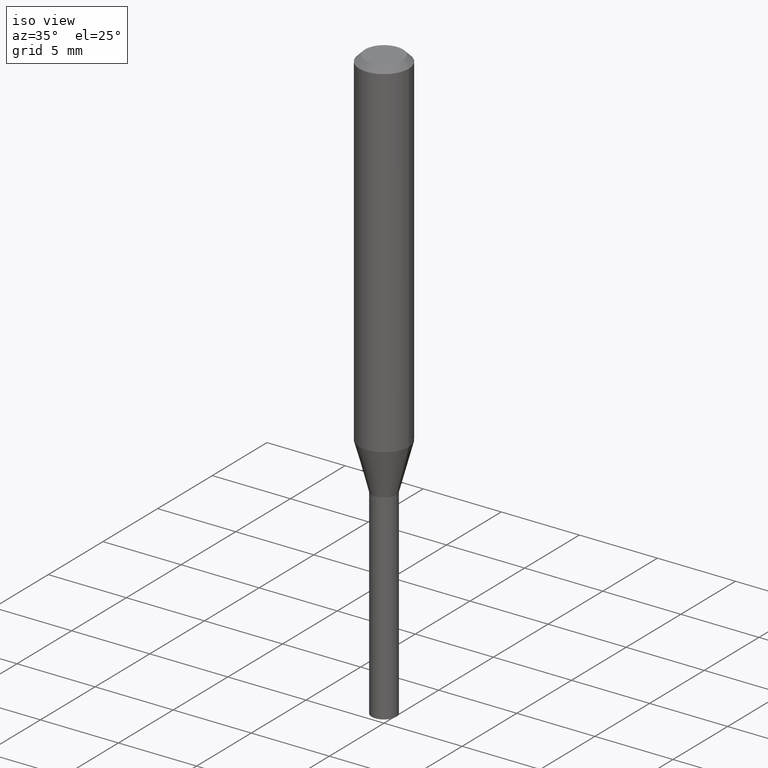
[diagram: clean part render]
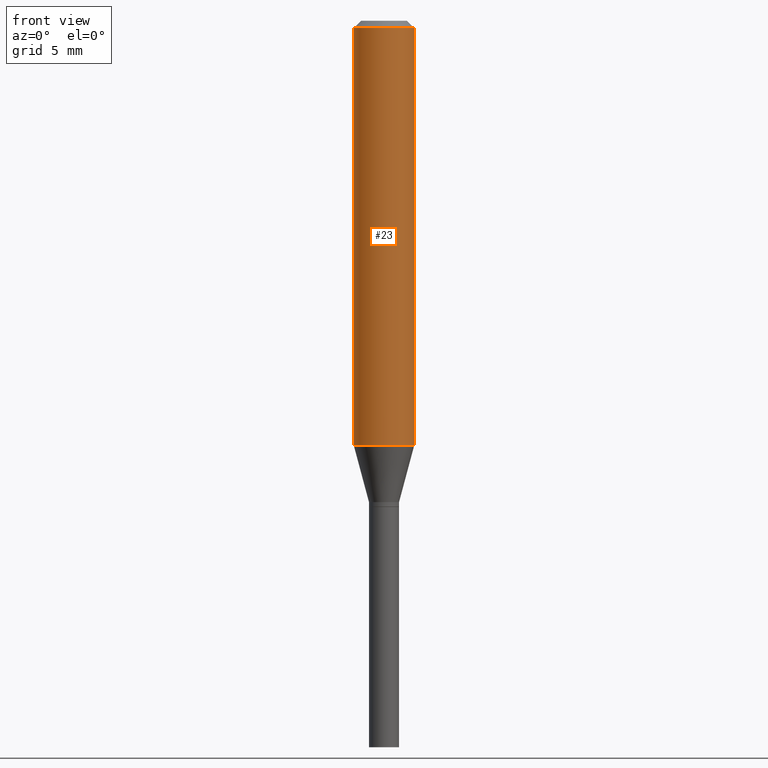
[diagram: tour spotlight — one face highlighted and labeled with its STEP entity id]
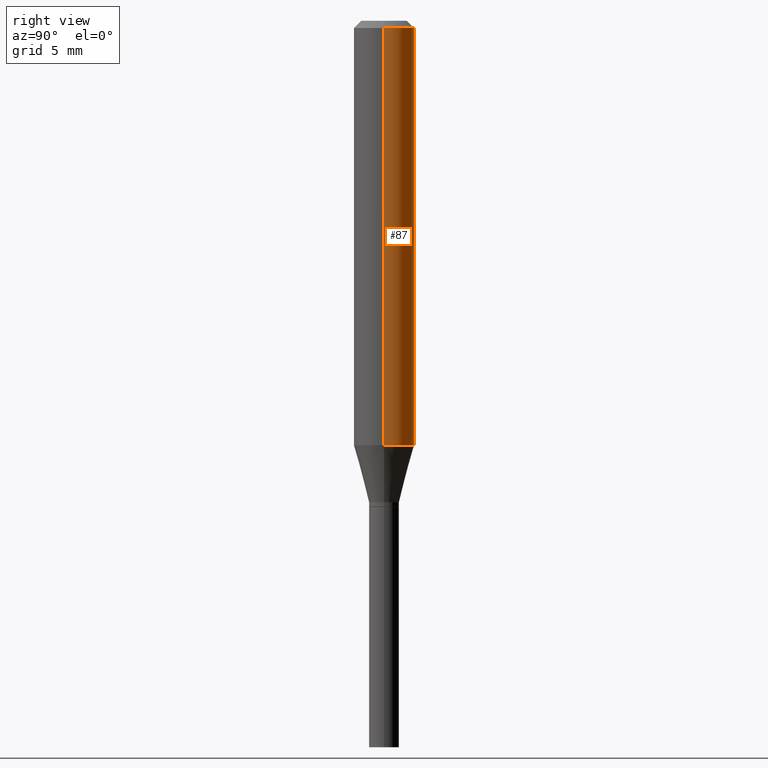
[diagram: tour spotlight — one face highlighted and labeled with its STEP entity id]
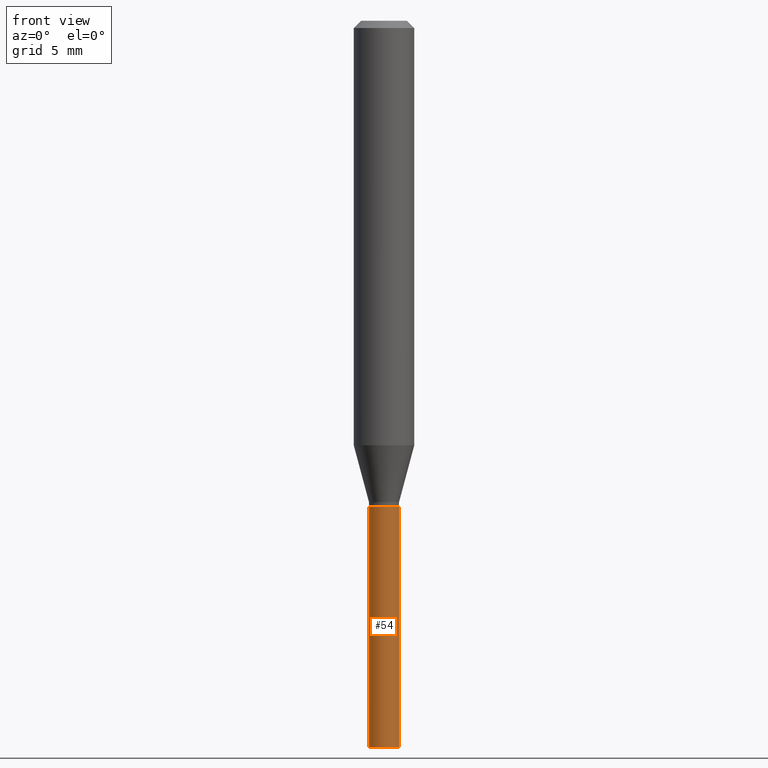
[diagram: tour spotlight — one face highlighted and labeled with its STEP entity id]
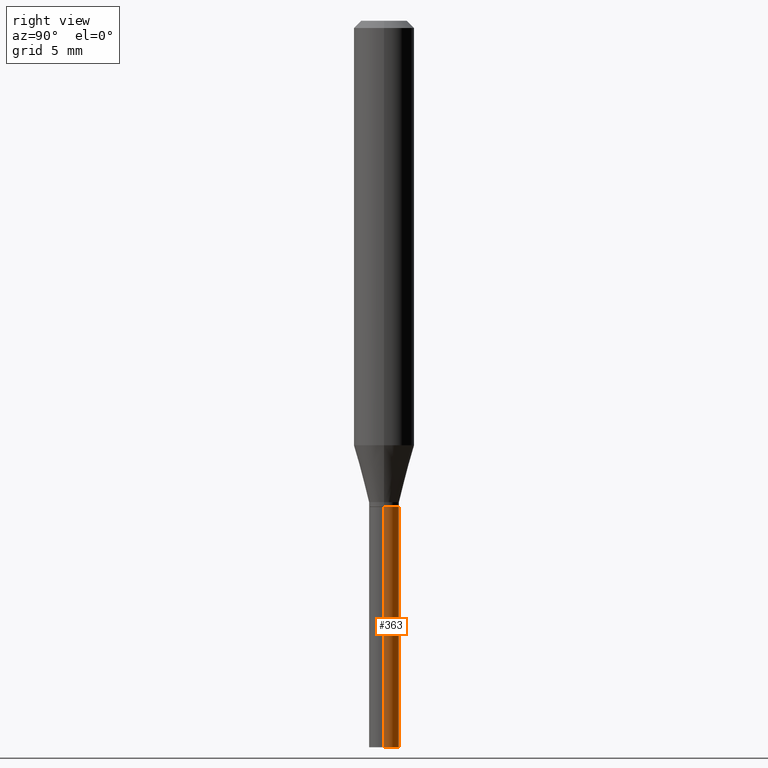
[diagram: tour spotlight — one face highlighted and labeled with its STEP entity id]
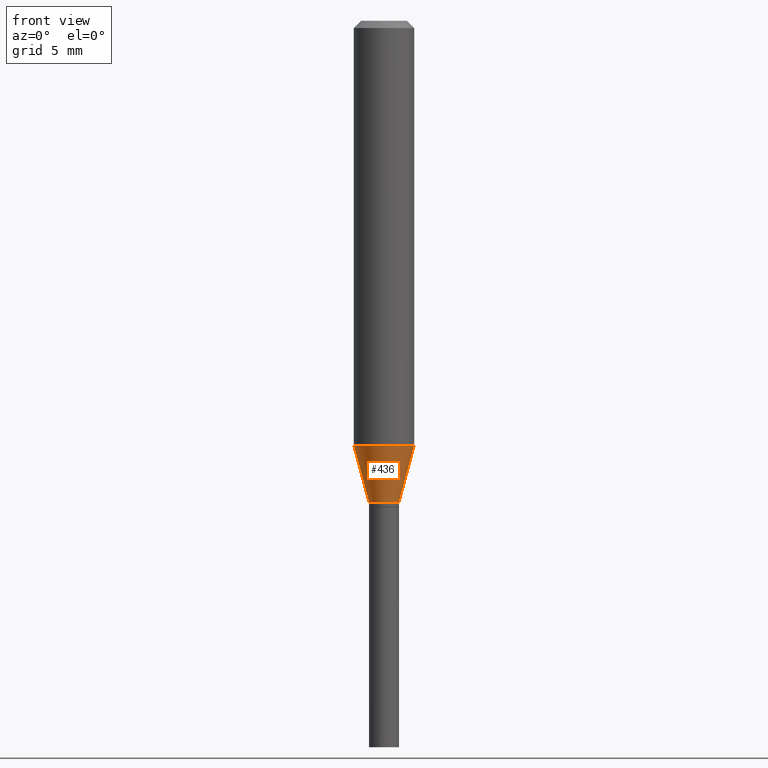
[diagram: tour spotlight — one face highlighted and labeled with its STEP entity id]
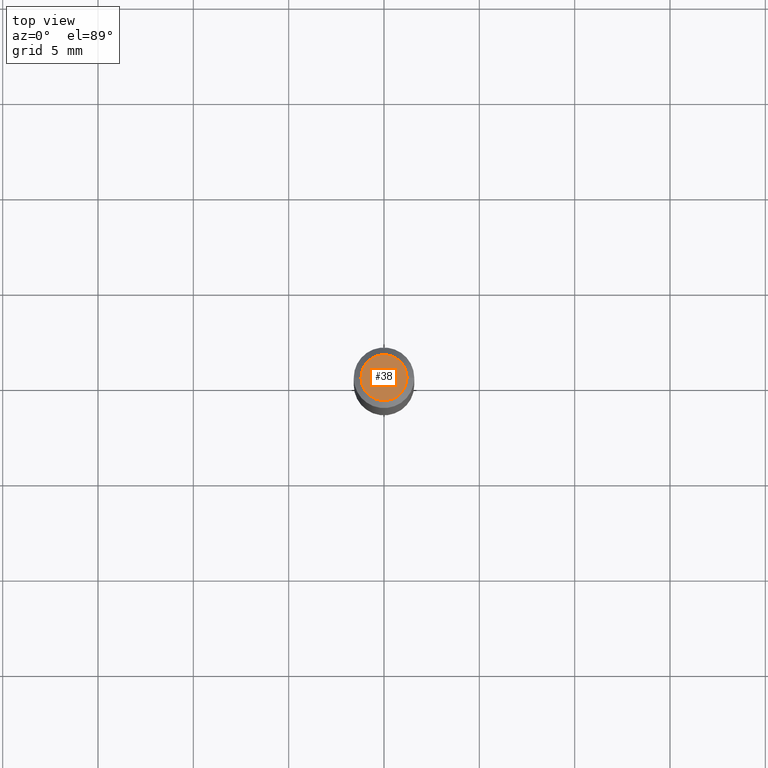
[diagram: tour spotlight — one face highlighted and labeled with its STEP entity id]
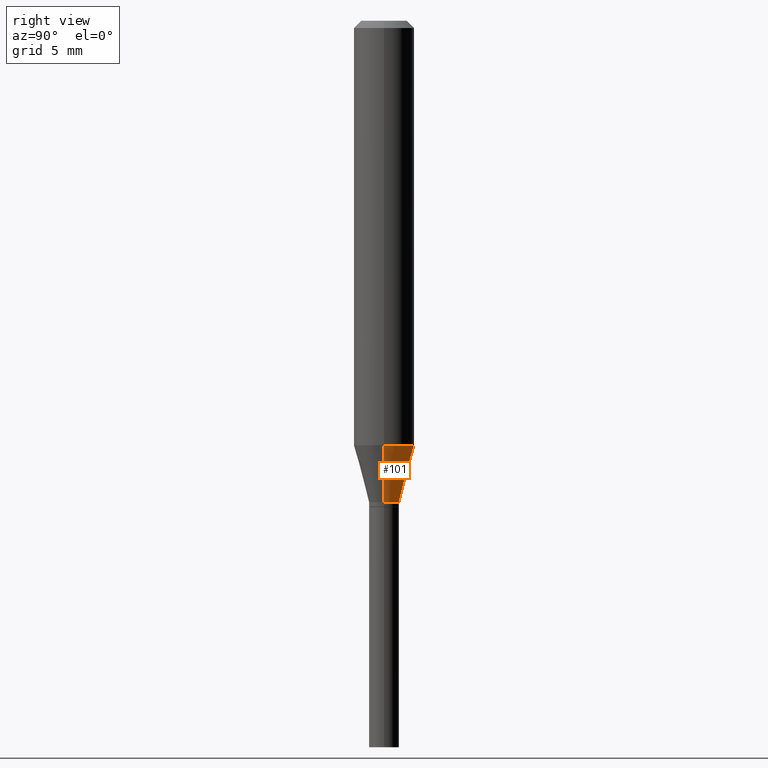
[diagram: tour spotlight — one face highlighted and labeled with its STEP entity id]
A machine part: a face-by-face anatomy tour. The part has 16 B-rep faces; the first image is the clean iso view, then the 7 largest visible faces are spotlighted one at a time (largest first), each with its STEP entity span.

Face 1 — front view, entity #23. In plain terms, the highlighted cylindrical surface (edge-blend (fillet) strip) has radius 1.5875 mm, axis along (-0, 0, 1).
Definition (entity closure, byte-faithful):
#18 = ORIENTED_EDGE ( 'NONE', *, *, #283, .F. ) ;
#22 = DIRECTION ( 'NONE',  ( 1.000000000000000000, -6.982962677686266711E-15, 4.876176775795935793E-29 ) ) ;
#23 = ADVANCED_FACE ( 'NONE', ( #127 ), #232, .T. ) ;
#32 = ORIENTED_EDGE ( 'NONE', *, *, #265, .T. ) ;
#56 = CARTESIAN_POINT ( 'NONE',  ( 0.000000000000000000, 0.000000000000000000, 0.000000000000000000 ) ) ;
#60 = VECTOR ( 'NONE', #349, 39.37007874015748143 ) ;
#64 = CARTESIAN_POINT ( 'NONE',  ( -0.06250000000000000000, 4.440892098500626162E-16, -3.074334431409316114E-30 ) ) ;
#79 = DIRECTION ( 'NONE',  ( -2.445468806185136877E-29, 3.491481338843145188E-15, 1.000000000000000000 ) ) ;
#81 = AXIS2_PLACEMENT_3D ( 'NONE', #173, #207, #383 ) ;
#89 = VERTEX_POINT ( 'NONE', #124 ) ;
#91 = EDGE_CURVE ( 'NONE', #261, #89, #288, .T. ) ;
#105 = LINE ( 'NONE', #64, #60 ) ;
#115 = AXIS2_PLACEMENT_3D ( 'NONE', #56, #267, #22 ) ;
#124 = CARTESIAN_POINT ( 'NONE',  ( 0.06250000000000000000, -4.888073874380388472E-16, -0.01499999999999999944 ) ) ;
#127 = FACE_OUTER_BOUND ( 'NONE', #291, .T. ) ;
#136 = CARTESIAN_POINT ( 'NONE',  ( -0.06250000000000000000, -2.615986089827427653E-15, -0.8764403995615810405 ) ) ;
#164 = VERTEX_POINT ( 'NONE', #136 ) ;
#173 = CARTESIAN_POINT ( 'NONE',  ( 2.143307657608283441E-29, -3.060075299677490269E-15, -0.8764403995615810405 ) ) ;
#192 = CARTESIAN_POINT ( 'NONE',  ( 3.668203209277705088E-31, -5.237222008264718399E-17, -0.01499999999999999944 ) ) ;
#207 = DIRECTION ( 'NONE',  ( -2.445468806185136597E-29, 3.491481338843145583E-15, 1.000000000000000000 ) ) ;
#218 = ORIENTED_EDGE ( 'NONE', *, *, #371, .T. ) ;
#232 = CYLINDRICAL_SURFACE ( 'NONE', #115, 0.06250000000000000000 ) ;
#241 = CARTESIAN_POINT ( 'NONE',  ( -0.06250000000000000000, -1.112134550030006255E-15, -0.01499999999999999944 ) ) ;
#252 = ORIENTED_EDGE ( 'NONE', *, *, #91, .F. ) ;
#261 = VERTEX_POINT ( 'NONE', #241 ) ;
#265 = EDGE_CURVE ( 'NONE', #164, #403, #425, .T. ) ;
#267 = DIRECTION ( 'NONE',  ( -2.445468806185136597E-29, 3.491481338843145583E-15, 1.000000000000000000 ) ) ;
#270 = VECTOR ( 'NONE', #79, 39.37007874015748143 ) ;
#283 = EDGE_CURVE ( 'NONE', #164, #261, #105, .T. ) ;
#288 = CIRCLE ( 'NONE', #465, 0.06250000000000000000 ) ;
#291 = EDGE_LOOP ( 'NONE', ( #18, #32, #218, #252 ) ) ;
#303 = DIRECTION ( 'NONE',  ( -2.445468806185136597E-29, 3.491481338843145583E-15, 1.000000000000000000 ) ) ;
#304 = DIRECTION ( 'NONE',  ( 1.000000000000000000, -6.982962677686266711E-15, 0.000000000000000000 ) ) ;
#349 = DIRECTION ( 'NONE',  ( -2.445468806185136877E-29, 3.491481338843145188E-15, 1.000000000000000000 ) ) ;
#362 = CARTESIAN_POINT ( 'NONE',  ( 0.06250000000000000000, -3.496510467032882333E-15, -0.8764403995615810405 ) ) ;
#371 = EDGE_CURVE ( 'NONE', #403, #89, #397, .T. ) ;
#383 = DIRECTION ( 'NONE',  ( 1.000000000000000000, -6.982962677686270655E-15, 0.000000000000000000 ) ) ;
#393 = CARTESIAN_POINT ( 'NONE',  ( 0.06250000000000000000, -4.364351673553916694E-16, 3.047610484872459871E-30 ) ) ;
#397 = LINE ( 'NONE', #393, #270 ) ;
#403 = VERTEX_POINT ( 'NONE', #362 ) ;
#425 = CIRCLE ( 'NONE', #81, 0.06250000000000000000 ) ;
#465 = AXIS2_PLACEMENT_3D ( 'NONE', #192, #303, #304 ) ;

Face 2 — right view, entity #87. In plain terms, the highlighted cylindrical surface (edge-blend (fillet) strip) has radius 1.5875 mm, axis along (-0, 0, 1).
Definition (entity closure, byte-faithful):
#9 = EDGE_CURVE ( 'NONE', #403, #164, #286, .T. ) ;
#52 = CYLINDRICAL_SURFACE ( 'NONE', #416, 0.06250000000000000000 ) ;
#57 = ORIENTED_EDGE ( 'NONE', *, *, #154, .F. ) ;
#58 = ORIENTED_EDGE ( 'NONE', *, *, #283, .T. ) ;
#60 = VECTOR ( 'NONE', #349, 39.37007874015748143 ) ;
#64 = CARTESIAN_POINT ( 'NONE',  ( -0.06250000000000000000, 4.440892098500626162E-16, -3.074334431409316114E-30 ) ) ;
#79 = DIRECTION ( 'NONE',  ( -2.445468806185136877E-29, 3.491481338843145188E-15, 1.000000000000000000 ) ) ;
#87 = ADVANCED_FACE ( 'NONE', ( #409 ), #52, .T. ) ;
#89 = VERTEX_POINT ( 'NONE', #124 ) ;
#92 = DIRECTION ( 'NONE',  ( 1.000000000000000000, -6.982962677686270655E-15, 0.000000000000000000 ) ) ;
#105 = LINE ( 'NONE', #64, #60 ) ;
#124 = CARTESIAN_POINT ( 'NONE',  ( 0.06250000000000000000, -4.888073874380388472E-16, -0.01499999999999999944 ) ) ;
#131 = DIRECTION ( 'NONE',  ( -2.445468806185136597E-29, 3.491481338843145583E-15, 1.000000000000000000 ) ) ;
#136 = CARTESIAN_POINT ( 'NONE',  ( -0.06250000000000000000, -2.615986089827427653E-15, -0.8764403995615810405 ) ) ;
#154 = EDGE_CURVE ( 'NONE', #89, #261, #297, .T. ) ;
#164 = VERTEX_POINT ( 'NONE', #136 ) ;
#170 = DIRECTION ( 'NONE',  ( 1.000000000000000000, -6.982962677686266711E-15, 0.000000000000000000 ) ) ;
#185 = ORIENTED_EDGE ( 'NONE', *, *, #9, .T. ) ;
#234 = CARTESIAN_POINT ( 'NONE',  ( 3.668203209277705088E-31, -5.237222008264718399E-17, -0.01499999999999999944 ) ) ;
#241 = CARTESIAN_POINT ( 'NONE',  ( -0.06250000000000000000, -1.112134550030006255E-15, -0.01499999999999999944 ) ) ;
#261 = VERTEX_POINT ( 'NONE', #241 ) ;
#269 = CARTESIAN_POINT ( 'NONE',  ( 2.143307657608283441E-29, -3.060075299677490269E-15, -0.8764403995615810405 ) ) ;
#270 = VECTOR ( 'NONE', #79, 39.37007874015748143 ) ;
#283 = EDGE_CURVE ( 'NONE', #164, #261, #105, .T. ) ;
#286 = CIRCLE ( 'NONE', #342, 0.06250000000000000000 ) ;
#293 = ORIENTED_EDGE ( 'NONE', *, *, #371, .F. ) ;
#297 = CIRCLE ( 'NONE', #302, 0.06250000000000000000 ) ;
#301 = DIRECTION ( 'NONE',  ( -2.445468806185136597E-29, 3.491481338843145583E-15, 1.000000000000000000 ) ) ;
#302 = AXIS2_PLACEMENT_3D ( 'NONE', #234, #426, #170 ) ;
#334 = CARTESIAN_POINT ( 'NONE',  ( 0.000000000000000000, 0.000000000000000000, 0.000000000000000000 ) ) ;
#342 = AXIS2_PLACEMENT_3D ( 'NONE', #269, #301, #92 ) ;
#349 = DIRECTION ( 'NONE',  ( -2.445468806185136877E-29, 3.491481338843145188E-15, 1.000000000000000000 ) ) ;
#362 = CARTESIAN_POINT ( 'NONE',  ( 0.06250000000000000000, -3.496510467032882333E-15, -0.8764403995615810405 ) ) ;
#371 = EDGE_CURVE ( 'NONE', #403, #89, #397, .T. ) ;
#393 = CARTESIAN_POINT ( 'NONE',  ( 0.06250000000000000000, -4.364351673553916694E-16, 3.047610484872459871E-30 ) ) ;
#394 = EDGE_LOOP ( 'NONE', ( #185, #58, #57, #293 ) ) ;
#397 = LINE ( 'NONE', #393, #270 ) ;
#403 = VERTEX_POINT ( 'NONE', #362 ) ;
#409 = FACE_OUTER_BOUND ( 'NONE', #394, .T. ) ;
#416 = AXIS2_PLACEMENT_3D ( 'NONE', #334, #131, #450 ) ;
#426 = DIRECTION ( 'NONE',  ( -2.445468806185136597E-29, 3.491481338843145583E-15, 1.000000000000000000 ) ) ;
#450 = DIRECTION ( 'NONE',  ( 1.000000000000000000, -6.982962677686266711E-15, 4.876176775795935793E-29 ) ) ;

Face 3 — front view, entity #54. In plain terms, the highlighted cylindrical surface (edge-blend (fillet) strip) has radius 0.7874 mm, axis along (-0, 0, 1).
Definition (entity closure, byte-faithful):
#3 = CARTESIAN_POINT ( 'NONE',  ( -0.03099999999999999978, 2.202682480856310560E-16, -1.524869877979020612E-30 ) ) ;
#6 = ORIENTED_EDGE ( 'NONE', *, *, #307, .F. ) ;
#15 = EDGE_CURVE ( 'NONE', #74, #332, #230, .T. ) ;
#39 = DIRECTION ( 'NONE',  ( -2.445468806185136877E-29, 3.491481338843145188E-15, 1.000000000000000000 ) ) ;
#40 = DIRECTION ( 'NONE',  ( -2.445468806185136597E-29, 3.491481338843145583E-15, 1.000000000000000000 ) ) ;
#50 = ORIENTED_EDGE ( 'NONE', *, *, #254, .T. ) ;
#54 = ADVANCED_FACE ( 'NONE', ( #263 ), #372, .T. ) ;
#66 = LINE ( 'NONE', #284, #380 ) ;
#67 = LINE ( 'NONE', #3, #97 ) ;
#69 = VERTEX_POINT ( 'NONE', #370 ) ;
#74 = VERTEX_POINT ( 'NONE', #83 ) ;
#83 = CARTESIAN_POINT ( 'NONE',  ( -0.03099999999999999978, -4.151066388145987232E-15, -1.004000000000000226 ) ) ;
#97 = VECTOR ( 'NONE', #39, 39.37007874015748143 ) ;
#129 = ORIENTED_EDGE ( 'NONE', *, *, #15, .F. ) ;
#162 = DIRECTION ( 'NONE',  ( -2.445468806185136597E-29, 3.491481338843145583E-15, 1.000000000000000000 ) ) ;
#163 = DIRECTION ( 'NONE',  ( -2.445468806185136597E-29, 3.491481338843145583E-15, 1.000000000000000000 ) ) ;
#165 = CIRCLE ( 'NONE', #306, 0.03099999999999999978 ) ;
#174 = AXIS2_PLACEMENT_3D ( 'NONE', #233, #163, #193 ) ;
#193 = DIRECTION ( 'NONE',  ( 1.000000000000000000, -6.982962677686266711E-15, 4.876176775795935232E-29 ) ) ;
#196 = CARTESIAN_POINT ( 'NONE',  ( 2.455250681409877327E-29, -3.505447264198518794E-15, -1.004000000000000226 ) ) ;
#220 = CARTESIAN_POINT ( 'NONE',  ( 3.668203209277704895E-29, -5.237222008264718177E-15, -1.500000000000000222 ) ) ;
#223 = ORIENTED_EDGE ( 'NONE', *, *, #365, .T. ) ;
#230 = CIRCLE ( 'NONE', #452, 0.03099999999999999978 ) ;
#233 = CARTESIAN_POINT ( 'NONE',  ( 0.000000000000000000, 0.000000000000000000, 0.000000000000000000 ) ) ;
#249 = DIRECTION ( 'NONE',  ( 1.000000000000000000, -6.982962677686270655E-15, 0.000000000000000000 ) ) ;
#254 = EDGE_CURVE ( 'NONE', #69, #332, #66, .T. ) ;
#263 = FACE_OUTER_BOUND ( 'NONE', #419, .T. ) ;
#284 = CARTESIAN_POINT ( 'NONE',  ( 0.03099999999999999978, -2.164718430082742572E-16, 1.511614800496739984E-30 ) ) ;
#294 = CARTESIAN_POINT ( 'NONE',  ( 0.03099999999999999978, -3.721919107206793126E-15, -1.004000000000000226 ) ) ;
#300 = DIRECTION ( 'NONE',  ( 1.000000000000000000, -6.982962677686270655E-15, 0.000000000000000000 ) ) ;
#306 = AXIS2_PLACEMENT_3D ( 'NONE', #220, #40, #249 ) ;
#307 = EDGE_CURVE ( 'NONE', #456, #74, #67, .T. ) ;
#332 = VERTEX_POINT ( 'NONE', #294 ) ;
#348 = DIRECTION ( 'NONE',  ( -2.445468806185136877E-29, 3.491481338843145188E-15, 1.000000000000000000 ) ) ;
#365 = EDGE_CURVE ( 'NONE', #456, #69, #165, .T. ) ;
#370 = CARTESIAN_POINT ( 'NONE',  ( 0.03099999999999999978, -5.453693851272993297E-15, -1.500000000000000222 ) ) ;
#372 = CYLINDRICAL_SURFACE ( 'NONE', #174, 0.03099999999999999978 ) ;
#380 = VECTOR ( 'NONE', #348, 39.37007874015748143 ) ;
#405 = CARTESIAN_POINT ( 'NONE',  ( -0.03099999999999999978, -4.151066388145987232E-15, -1.500000000000000222 ) ) ;
#419 = EDGE_LOOP ( 'NONE', ( #6, #223, #50, #129 ) ) ;
#452 = AXIS2_PLACEMENT_3D ( 'NONE', #196, #162, #300 ) ;
#456 = VERTEX_POINT ( 'NONE', #405 ) ;

Face 4 — right view, entity #363. In plain terms, the highlighted cylindrical surface (edge-blend (fillet) strip) has radius 0.7874 mm, axis along (-0, 0, 1).
Definition (entity closure, byte-faithful):
#3 = CARTESIAN_POINT ( 'NONE',  ( -0.03099999999999999978, 2.202682480856310560E-16, -1.524869877979020612E-30 ) ) ;
#21 = ORIENTED_EDGE ( 'NONE', *, *, #104, .T. ) ;
#34 = DIRECTION ( 'NONE',  ( 1.000000000000000000, -6.982962677686270655E-15, 0.000000000000000000 ) ) ;
#39 = DIRECTION ( 'NONE',  ( -2.445468806185136877E-29, 3.491481338843145188E-15, 1.000000000000000000 ) ) ;
#42 = CIRCLE ( 'NONE', #433, 0.03099999999999999978 ) ;
#44 = ORIENTED_EDGE ( 'NONE', *, *, #254, .F. ) ;
#66 = LINE ( 'NONE', #284, #380 ) ;
#67 = LINE ( 'NONE', #3, #97 ) ;
#69 = VERTEX_POINT ( 'NONE', #370 ) ;
#74 = VERTEX_POINT ( 'NONE', #83 ) ;
#83 = CARTESIAN_POINT ( 'NONE',  ( -0.03099999999999999978, -4.151066388145987232E-15, -1.004000000000000226 ) ) ;
#97 = VECTOR ( 'NONE', #39, 39.37007874015748143 ) ;
#104 = EDGE_CURVE ( 'NONE', #69, #456, #42, .T. ) ;
#108 = CARTESIAN_POINT ( 'NONE',  ( 0.000000000000000000, 0.000000000000000000, 0.000000000000000000 ) ) ;
#118 = DIRECTION ( 'NONE',  ( -2.445468806185136597E-29, 3.491481338843145583E-15, 1.000000000000000000 ) ) ;
#147 = FACE_OUTER_BOUND ( 'NONE', #158, .T. ) ;
#158 = EDGE_LOOP ( 'NONE', ( #21, #438, #187, #44 ) ) ;
#178 = CYLINDRICAL_SURFACE ( 'NONE', #343, 0.03099999999999999978 ) ;
#187 = ORIENTED_EDGE ( 'NONE', *, *, #194, .F. ) ;
#194 = EDGE_CURVE ( 'NONE', #332, #74, #453, .T. ) ;
#201 = CARTESIAN_POINT ( 'NONE',  ( 3.668203209277704895E-29, -5.237222008264718177E-15, -1.500000000000000222 ) ) ;
#208 = DIRECTION ( 'NONE',  ( -2.445468806185136597E-29, 3.491481338843145583E-15, 1.000000000000000000 ) ) ;
#254 = EDGE_CURVE ( 'NONE', #69, #332, #66, .T. ) ;
#256 = AXIS2_PLACEMENT_3D ( 'NONE', #381, #462, #351 ) ;
#284 = CARTESIAN_POINT ( 'NONE',  ( 0.03099999999999999978, -2.164718430082742572E-16, 1.511614800496739984E-30 ) ) ;
#294 = CARTESIAN_POINT ( 'NONE',  ( 0.03099999999999999978, -3.721919107206793126E-15, -1.004000000000000226 ) ) ;
#307 = EDGE_CURVE ( 'NONE', #456, #74, #67, .T. ) ;
#332 = VERTEX_POINT ( 'NONE', #294 ) ;
#343 = AXIS2_PLACEMENT_3D ( 'NONE', #108, #118, #353 ) ;
#348 = DIRECTION ( 'NONE',  ( -2.445468806185136877E-29, 3.491481338843145188E-15, 1.000000000000000000 ) ) ;
#351 = DIRECTION ( 'NONE',  ( 1.000000000000000000, -6.982962677686270655E-15, 0.000000000000000000 ) ) ;
#353 = DIRECTION ( 'NONE',  ( 1.000000000000000000, -6.982962677686266711E-15, 4.876176775795935232E-29 ) ) ;
#363 = ADVANCED_FACE ( 'NONE', ( #147 ), #178, .T. ) ;
#370 = CARTESIAN_POINT ( 'NONE',  ( 0.03099999999999999978, -5.453693851272993297E-15, -1.500000000000000222 ) ) ;
#380 = VECTOR ( 'NONE', #348, 39.37007874015748143 ) ;
#381 = CARTESIAN_POINT ( 'NONE',  ( 2.455250681409877327E-29, -3.505447264198518794E-15, -1.004000000000000226 ) ) ;
#405 = CARTESIAN_POINT ( 'NONE',  ( -0.03099999999999999978, -4.151066388145987232E-15, -1.500000000000000222 ) ) ;
#433 = AXIS2_PLACEMENT_3D ( 'NONE', #201, #208, #34 ) ;
#438 = ORIENTED_EDGE ( 'NONE', *, *, #307, .T. ) ;
#453 = CIRCLE ( 'NONE', #256, 0.03099999999999999978 ) ;
#456 = VERTEX_POINT ( 'NONE', #405 ) ;
#462 = DIRECTION ( 'NONE',  ( -2.445468806185136597E-29, 3.491481338843145583E-15, 1.000000000000000000 ) ) ;

Face 5 — front view, entity #436. In plain terms, the highlighted conical surface has half-angle 15 deg.
Definition (entity closure, byte-faithful):
#2 = LINE ( 'NONE', #387, #276 ) ;
#12 = FACE_OUTER_BOUND ( 'NONE', #358, .T. ) ;
#13 = AXIS2_PLACEMENT_3D ( 'NONE', #157, #186, #150 ) ;
#17 = CARTESIAN_POINT ( 'NONE',  ( 2.430795993348026062E-29, -3.470532450810087145E-15, -0.9940000000000001057 ) ) ;
#62 = CIRCLE ( 'NONE', #344, 0.03100000000000005529 ) ;
#71 = ORIENTED_EDGE ( 'NONE', *, *, #457, .T. ) ;
#81 = AXIS2_PLACEMENT_3D ( 'NONE', #173, #207, #383 ) ;
#126 = DIRECTION ( 'NONE',  ( -2.445468806185136597E-29, 3.491481338843145583E-15, 1.000000000000000000 ) ) ;
#136 = CARTESIAN_POINT ( 'NONE',  ( -0.06250000000000000000, -2.615986089827427653E-15, -0.8764403995615810405 ) ) ;
#150 = DIRECTION ( 'NONE',  ( 1.000000000000000000, -6.982962677686273810E-15, 0.000000000000000000 ) ) ;
#157 = CARTESIAN_POINT ( 'NONE',  ( 2.430795993348026062E-29, -3.470532450810087145E-15, -0.9940000000000001057 ) ) ;
#159 = DIRECTION ( 'NONE',  ( 1.000000000000000000, -6.982962677686273810E-15, 0.000000000000000000 ) ) ;
#160 = ORIENTED_EDGE ( 'NONE', *, *, #236, .F. ) ;
#164 = VERTEX_POINT ( 'NONE', #136 ) ;
#173 = CARTESIAN_POINT ( 'NONE',  ( 2.143307657608283441E-29, -3.060075299677490269E-15, -0.8764403995615810405 ) ) ;
#186 = DIRECTION ( 'NONE',  ( -2.445468806185136597E-29, 3.491481338843145583E-15, 1.000000000000000000 ) ) ;
#203 = DIRECTION ( 'NONE',  ( -0.2588190451025214611, 5.211531920934551042E-15, 0.9659258262890682012 ) ) ;
#207 = DIRECTION ( 'NONE',  ( -2.445468806185136597E-29, 3.491481338843145583E-15, 1.000000000000000000 ) ) ;
#213 = ORIENTED_EDGE ( 'NONE', *, *, #265, .F. ) ;
#236 = EDGE_CURVE ( 'NONE', #328, #164, #2, .T. ) ;
#265 = EDGE_CURVE ( 'NONE', #164, #403, #425, .T. ) ;
#271 = ORIENTED_EDGE ( 'NONE', *, *, #346, .T. ) ;
#276 = VECTOR ( 'NONE', #203, 39.37007874015747433 ) ;
#320 = CARTESIAN_POINT ( 'NONE',  ( -0.03100000000000005529, -2.933125146275941575E-15, -0.9940000000000001057 ) ) ;
#328 = VERTEX_POINT ( 'NONE', #320 ) ;
#338 = VERTEX_POINT ( 'NONE', #437 ) ;
#344 = AXIS2_PLACEMENT_3D ( 'NONE', #17, #126, #159 ) ;
#346 = EDGE_CURVE ( 'NONE', #338, #403, #442, .T. ) ;
#350 = CONICAL_SURFACE ( 'NONE', #13, 0.03100000000000005529, 0.2617993877991501295 ) ;
#354 = DIRECTION ( 'NONE',  ( 0.2588190451025214611, 1.565188264969621573E-15, 0.9659258262890682012 ) ) ;
#358 = EDGE_LOOP ( 'NONE', ( #160, #71, #271, #213 ) ) ;
#362 = CARTESIAN_POINT ( 'NONE',  ( 0.06250000000000000000, -3.496510467032882333E-15, -0.8764403995615810405 ) ) ;
#367 = VECTOR ( 'NONE', #354, 39.37007874015747433 ) ;
#383 = DIRECTION ( 'NONE',  ( 1.000000000000000000, -6.982962677686270655E-15, 0.000000000000000000 ) ) ;
#387 = CARTESIAN_POINT ( 'NONE',  ( -0.03100000000000005529, -3.250264202724455892E-15, -0.9940000000000001057 ) ) ;
#403 = VERTEX_POINT ( 'NONE', #362 ) ;
#425 = CIRCLE ( 'NONE', #81, 0.06250000000000000000 ) ;
#435 = CARTESIAN_POINT ( 'NONE',  ( 0.03100000000000005529, -3.687004293818362265E-15, -0.9940000000000001057 ) ) ;
#436 = ADVANCED_FACE ( 'NONE', ( #12 ), #350, .T. ) ;
#437 = CARTESIAN_POINT ( 'NONE',  ( 0.03100000000000005529, -3.687004293818362265E-15, -0.9940000000000001057 ) ) ;
#442 = LINE ( 'NONE', #435, #367 ) ;
#457 = EDGE_CURVE ( 'NONE', #328, #338, #62, .T. ) ;

Face 6 — top view, entity #38. In plain terms, the highlighted planar face has unit normal (0, -0, -1).
Definition (entity closure, byte-faithful):
#5 = CARTESIAN_POINT ( 'NONE',  ( -6.039856226162563845E-45, 8.623313963198305035E-31, 2.469815280770058928E-16 ) ) ;
#10 = DIRECTION ( 'NONE',  ( 1.000000000000000000, -6.982962677686267499E-15, 4.852736867747366768E-29 ) ) ;
#38 = ADVANCED_FACE ( 'NONE', ( #412 ), #85, .F. ) ;
#53 = CARTESIAN_POINT ( 'NONE',  ( 3.316907271900976096E-16, 0.04749999999999999362, -4.235459955654645622E-17 ) ) ;
#72 = CIRCLE ( 'NONE', #389, 0.04749999999999999362 ) ;
#85 = PLANE ( 'NONE',  #314 ) ;
#112 = CARTESIAN_POINT ( 'NONE',  ( -6.039856226162563845E-45, 8.623313963198305035E-31, 2.469815280770058928E-16 ) ) ;
#119 = ORIENTED_EDGE ( 'NONE', *, *, #386, .T. ) ;
#139 = CARTESIAN_POINT ( 'NONE',  ( -0.04749999999999999362, 3.578768372314215436E-16, 2.469815280770034769E-16 ) ) ;
#151 = VERTEX_POINT ( 'NONE', #139 ) ;
#195 = AXIS2_PLACEMENT_3D ( 'NONE', #5, #439, #10 ) ;
#205 = VERTEX_POINT ( 'NONE', #421 ) ;
#226 = DIRECTION ( 'NONE',  ( -1.000000000000000000, 6.982962677686265922E-15, -4.876176775795935793E-29 ) ) ;
#298 = DIRECTION ( 'NONE',  ( -2.445468806185136597E-29, 3.491481338843145583E-15, 1.000000000000000000 ) ) ;
#314 = AXIS2_PLACEMENT_3D ( 'NONE', #53, #414, #226 ) ;
#329 = CIRCLE ( 'NONE', #195, 0.04749999999999999362 ) ;
#364 = ORIENTED_EDGE ( 'NONE', *, *, #441, .T. ) ;
#386 = EDGE_CURVE ( 'NONE', #205, #151, #329, .T. ) ;
#389 = AXIS2_PLACEMENT_3D ( 'NONE', #112, #298, #446 ) ;
#412 = FACE_OUTER_BOUND ( 'NONE', #440, .T. ) ;
#414 = DIRECTION ( 'NONE',  ( 2.438088387897960049E-29, -3.491481338843145188E-15, -1.000000000000000000 ) ) ;
#421 = CARTESIAN_POINT ( 'NONE',  ( 0.04749999999999999362, -4.035134999187574186E-16, 2.469815280770084566E-16 ) ) ;
#439 = DIRECTION ( 'NONE',  ( -2.445468806185136597E-29, 3.491481338843145583E-15, 1.000000000000000000 ) ) ;
#440 = EDGE_LOOP ( 'NONE', ( #364, #119 ) ) ;
#441 = EDGE_CURVE ( 'NONE', #151, #205, #72, .T. ) ;
#446 = DIRECTION ( 'NONE',  ( 1.000000000000000000, -6.982962677686267499E-15, 4.852736867747366768E-29 ) ) ;

Face 7 — right view, entity #101. In plain terms, the highlighted conical surface has half-angle 15 deg.
Definition (entity closure, byte-faithful):
#2 = LINE ( 'NONE', #387, #276 ) ;
#9 = EDGE_CURVE ( 'NONE', #403, #164, #286, .T. ) ;
#11 = ORIENTED_EDGE ( 'NONE', *, *, #9, .F. ) ;
#41 = EDGE_LOOP ( 'NONE', ( #148, #305, #11, #331 ) ) ;
#55 = CIRCLE ( 'NONE', #357, 0.03100000000000005529 ) ;
#92 = DIRECTION ( 'NONE',  ( 1.000000000000000000, -6.982962677686270655E-15, 0.000000000000000000 ) ) ;
#101 = ADVANCED_FACE ( 'NONE', ( #128 ), #443, .T. ) ;
#128 = FACE_OUTER_BOUND ( 'NONE', #41, .T. ) ;
#136 = CARTESIAN_POINT ( 'NONE',  ( -0.06250000000000000000, -2.615986089827427653E-15, -0.8764403995615810405 ) ) ;
#144 = CARTESIAN_POINT ( 'NONE',  ( 2.430795993348026062E-29, -3.470532450810087145E-15, -0.9940000000000001057 ) ) ;
#148 = ORIENTED_EDGE ( 'NONE', *, *, #318, .T. ) ;
#164 = VERTEX_POINT ( 'NONE', #136 ) ;
#200 = AXIS2_PLACEMENT_3D ( 'NONE', #229, #373, #337 ) ;
#203 = DIRECTION ( 'NONE',  ( -0.2588190451025214611, 5.211531920934551042E-15, 0.9659258262890682012 ) ) ;
#229 = CARTESIAN_POINT ( 'NONE',  ( 2.430795993348026062E-29, -3.470532450810087145E-15, -0.9940000000000001057 ) ) ;
#236 = EDGE_CURVE ( 'NONE', #328, #164, #2, .T. ) ;
#269 = CARTESIAN_POINT ( 'NONE',  ( 2.143307657608283441E-29, -3.060075299677490269E-15, -0.8764403995615810405 ) ) ;
#276 = VECTOR ( 'NONE', #203, 39.37007874015747433 ) ;
#286 = CIRCLE ( 'NONE', #342, 0.06250000000000000000 ) ;
#287 = DIRECTION ( 'NONE',  ( 1.000000000000000000, -6.982962677686273810E-15, 0.000000000000000000 ) ) ;
#301 = DIRECTION ( 'NONE',  ( -2.445468806185136597E-29, 3.491481338843145583E-15, 1.000000000000000000 ) ) ;
#305 = ORIENTED_EDGE ( 'NONE', *, *, #236, .T. ) ;
#318 = EDGE_CURVE ( 'NONE', #338, #328, #55, .T. ) ;
#320 = CARTESIAN_POINT ( 'NONE',  ( -0.03100000000000005529, -2.933125146275941575E-15, -0.9940000000000001057 ) ) ;
#328 = VERTEX_POINT ( 'NONE', #320 ) ;
#331 = ORIENTED_EDGE ( 'NONE', *, *, #346, .F. ) ;
#337 = DIRECTION ( 'NONE',  ( 1.000000000000000000, -6.982962677686273810E-15, 0.000000000000000000 ) ) ;
#338 = VERTEX_POINT ( 'NONE', #437 ) ;
#342 = AXIS2_PLACEMENT_3D ( 'NONE', #269, #301, #92 ) ;
#346 = EDGE_CURVE ( 'NONE', #338, #403, #442, .T. ) ;
#354 = DIRECTION ( 'NONE',  ( 0.2588190451025214611, 1.565188264969621573E-15, 0.9659258262890682012 ) ) ;
#357 = AXIS2_PLACEMENT_3D ( 'NONE', #144, #395, #287 ) ;
#362 = CARTESIAN_POINT ( 'NONE',  ( 0.06250000000000000000, -3.496510467032882333E-15, -0.8764403995615810405 ) ) ;
#367 = VECTOR ( 'NONE', #354, 39.37007874015747433 ) ;
#373 = DIRECTION ( 'NONE',  ( -2.445468806185136597E-29, 3.491481338843145583E-15, 1.000000000000000000 ) ) ;
#387 = CARTESIAN_POINT ( 'NONE',  ( -0.03100000000000005529, -3.250264202724455892E-15, -0.9940000000000001057 ) ) ;
#395 = DIRECTION ( 'NONE',  ( -2.445468806185136597E-29, 3.491481338843145583E-15, 1.000000000000000000 ) ) ;
#403 = VERTEX_POINT ( 'NONE', #362 ) ;
#435 = CARTESIAN_POINT ( 'NONE',  ( 0.03100000000000005529, -3.687004293818362265E-15, -0.9940000000000001057 ) ) ;
#437 = CARTESIAN_POINT ( 'NONE',  ( 0.03100000000000005529, -3.687004293818362265E-15, -0.9940000000000001057 ) ) ;
#442 = LINE ( 'NONE', #435, #367 ) ;
#443 = CONICAL_SURFACE ( 'NONE', #200, 0.03100000000000005529, 0.2617993877991501295 ) ;